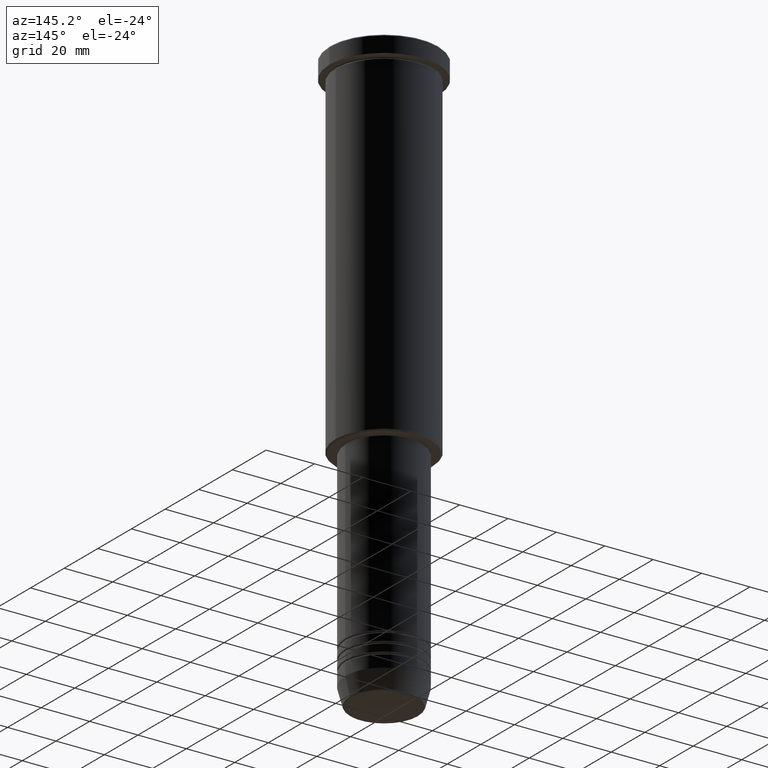
[diagram: clean part render]
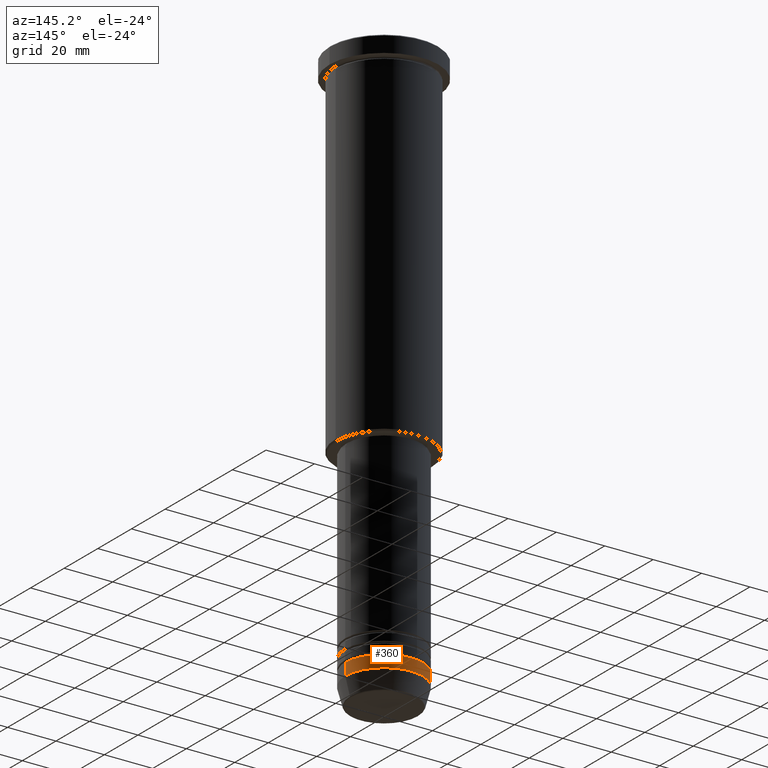
[diagram: same view with one face highlighted and labeled with its STEP entity id]
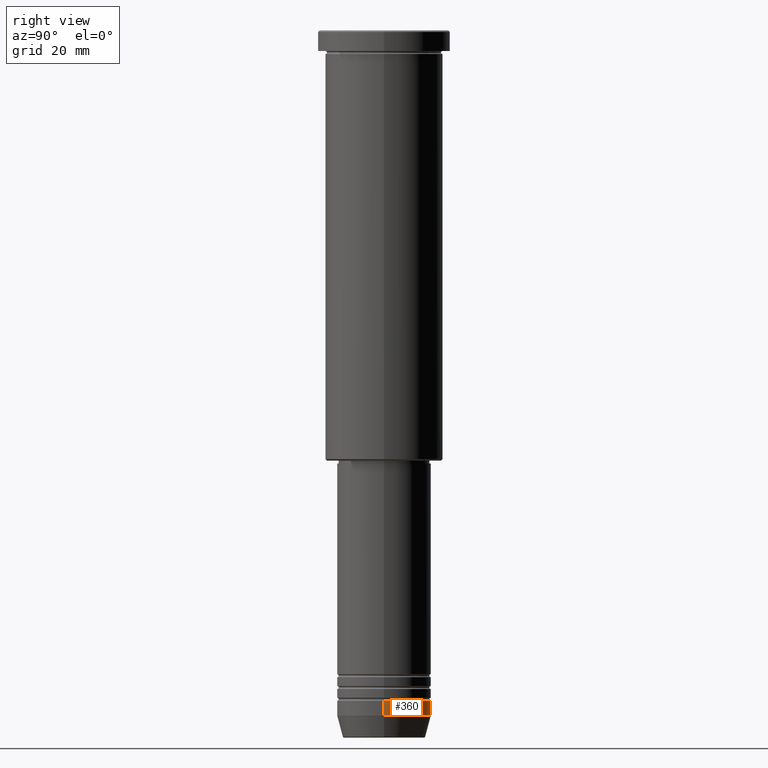
[diagram: same view with one face highlighted and labeled with its STEP entity id]
A machine part, auxiliary view. The second image highlights one B-rep face of the part: STEP entity #360.
A second angle (right view) of the same face is appended — the face is thin or edge-on in the first view.
In plain terms, the highlighted cylindrical surface (partial cylindrical patch) has radius 16 mm, axis along (-0, -0, 1).
Its self-contained STEP definition (entity closure, byte-faithful):
#30 = AXIS2_PLACEMENT_3D ( 'NONE', #855, #585, #1121 ) ;
#49 = AXIS2_PLACEMENT_3D ( 'NONE', #946, #691, #591 ) ;
#91 = LINE ( 'NONE', #463, #887 ) ;
#93 = CARTESIAN_POINT ( 'NONE',  ( -16.00000000000000000, 1.959434878635765131E-15, -227.5000000000000000 ) ) ;
#226 = CARTESIAN_POINT ( 'NONE',  ( -16.00000000000000000, 1.959434878635765131E-15, -232.5000000000000000 ) ) ;
#227 = ORIENTED_EDGE ( 'NONE', *, *, #898, .T. ) ;
#287 = VERTEX_POINT ( 'NONE', #93 ) ;
#299 = AXIS2_PLACEMENT_3D ( 'NONE', #554, #357, #636 ) ;
#316 = CIRCLE ( 'NONE', #30, 16.00000000000000000 ) ;
#357 = DIRECTION ( 'NONE',  ( -0.000000000000000000, -0.000000000000000000, 1.000000000000000000 ) ) ;
#360 = ADVANCED_FACE ( 'NONE', ( #878 ), #678, .T. ) ;
#376 = CARTESIAN_POINT ( 'NONE',  ( 16.00000000000000000, 0.000000000000000000, -232.5000000000000000 ) ) ;
#407 = CARTESIAN_POINT ( 'NONE',  ( 16.00000000000000000, 0.000000000000000000, -227.5000000000000000 ) ) ;
#419 = ORIENTED_EDGE ( 'NONE', *, *, #459, .F. ) ;
#456 = CIRCLE ( 'NONE', #299, 16.00000000000000000 ) ;
#459 = EDGE_CURVE ( 'NONE', #561, #1177, #91, .T. ) ;
#463 = CARTESIAN_POINT ( 'NONE',  ( 16.00000000000000000, 0.000000000000000000, 0.000000000000000000 ) ) ;
#554 = CARTESIAN_POINT ( 'NONE',  ( 0.000000000000000000, 0.000000000000000000, -232.5000000000000000 ) ) ;
#561 = VERTEX_POINT ( 'NONE', #376 ) ;
#585 = DIRECTION ( 'NONE',  ( -0.000000000000000000, -0.000000000000000000, 1.000000000000000000 ) ) ;
#591 = DIRECTION ( 'NONE',  ( 1.000000000000000000, 0.000000000000000000, 0.000000000000000000 ) ) ;
#592 = EDGE_CURVE ( 'NONE', #1177, #287, #316, .T. ) ;
#636 = DIRECTION ( 'NONE',  ( 1.000000000000000000, 0.000000000000000000, 0.000000000000000000 ) ) ;
#665 = CARTESIAN_POINT ( 'NONE',  ( -16.00000000000000000, 1.959434878635765131E-15, 0.000000000000000000 ) ) ;
#678 = CYLINDRICAL_SURFACE ( 'NONE', #49, 16.00000000000000000 ) ;
#691 = DIRECTION ( 'NONE',  ( -0.000000000000000000, -0.000000000000000000, 1.000000000000000000 ) ) ;
#823 = ORIENTED_EDGE ( 'NONE', *, *, #1011, .T. ) ;
#848 = DIRECTION ( 'NONE',  ( -0.000000000000000000, -0.000000000000000000, 1.000000000000000000 ) ) ;
#854 = VECTOR ( 'NONE', #1036, 1000.000000000000000 ) ;
#855 = CARTESIAN_POINT ( 'NONE',  ( 0.000000000000000000, 0.000000000000000000, -227.5000000000000000 ) ) ;
#878 = FACE_OUTER_BOUND ( 'NONE', #1143, .T. ) ;
#882 = ORIENTED_EDGE ( 'NONE', *, *, #592, .F. ) ;
#887 = VECTOR ( 'NONE', #848, 1000.000000000000000 ) ;
#898 = EDGE_CURVE ( 'NONE', #1113, #287, #1124, .T. ) ;
#946 = CARTESIAN_POINT ( 'NONE',  ( 0.000000000000000000, 0.000000000000000000, 0.000000000000000000 ) ) ;
#1011 = EDGE_CURVE ( 'NONE', #561, #1113, #456, .T. ) ;
#1036 = DIRECTION ( 'NONE',  ( -0.000000000000000000, -0.000000000000000000, 1.000000000000000000 ) ) ;
#1113 = VERTEX_POINT ( 'NONE', #226 ) ;
#1121 = DIRECTION ( 'NONE',  ( 1.000000000000000000, 0.000000000000000000, 0.000000000000000000 ) ) ;
#1124 = LINE ( 'NONE', #665, #854 ) ;
#1143 = EDGE_LOOP ( 'NONE', ( #823, #227, #882, #419 ) ) ;
#1177 = VERTEX_POINT ( 'NONE', #407 ) ;